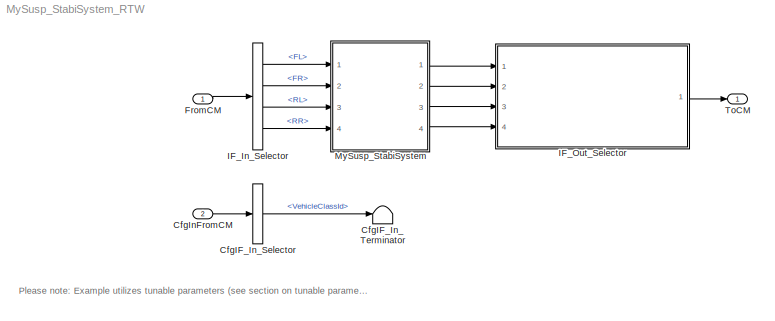
MODEL MySusp_StabiSystem_RTW
KIND model
CONFIG InitFcn = vehicle = 'Car'; if ~length(which('cmself')), cmenv; end\nMySusp_StabiSystem_RTW_bus
CONFIG PreLoadFcn = vehicle = 'Car'; if ~length(which('cmself')), cmenv; end\nMySusp_StabiSystem_RTW_bus\nMySusp_StabiSystem_RTW_params
BLOCK [BusSelector] CfgIF_In_Selector
  OutputSignals = VehicleClassId
  Ports = [1, 1]
  SID = 9
BLOCK [Terminator] CfgIF_In_Terminator
  SID = 10
BLOCK [Inport] CfgInFromCM
  OutDataTypeStr = Bus: cmSusp_StabiSystemCfgIn
  Port = 2
  SID = 8
BLOCK [Inport] FromCM
  OutDataTypeStr = Bus: cmSusp_StabiSystemIn
  SID = 1
BLOCK [BusSelector] IF_In_Selector
  OutputSignals = length.FL,length.FR,length.RL,length.RR
  Ports = [1, 4]
  SID = 2
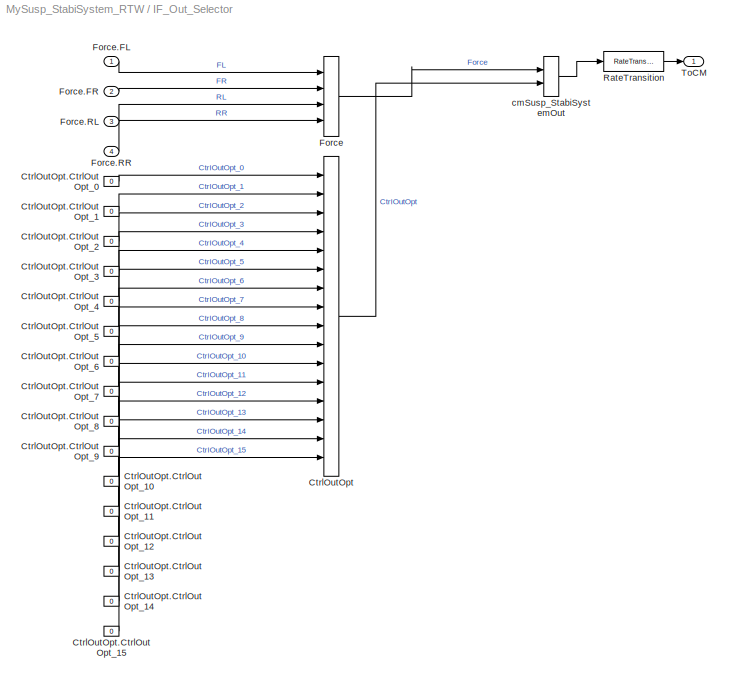
BLOCK [SubSystem] IF_Out_Selector
  OpenFcn = cmSignalSelect('SignalSelection_CB',gcb)
  Ports = [4, 1]
  RequestExecContextInheritance = off
  SID = 5
  UserData = DataTag0
  UserDataPersistent = on
BLOCK [BusCreator] IF_Out_Selector/CtrlOutOpt
  InheritFromInputs = on
  Inputs = 16
  Ports = [16, 1]
  SID = 17
BLOCK [Constant] IF_Out_Selector/CtrlOutOpt.CtrlOutOpt_0
  SID = 18
  Value = 0
BLOCK [Constant] IF_Out_Selector/CtrlOutOpt.CtrlOutOpt_1
  SID = 19
  Value = 0
BLOCK [Constant] IF_Out_Selector/CtrlOutOpt.CtrlOutOpt_10
  SID = 28
  Value = 0
BLOCK [Constant] IF_Out_Selector/CtrlOutOpt.CtrlOutOpt_11
  SID = 29
  Value = 0
BLOCK [Constant] IF_Out_Selector/CtrlOutOpt.CtrlOutOpt_12
  SID = 30
  Value = 0
BLOCK [Constant] IF_Out_Selector/CtrlOutOpt.CtrlOutOpt_13
  SID = 31
  Value = 0
BLOCK [Constant] IF_Out_Selector/CtrlOutOpt.CtrlOutOpt_14
  SID = 32
  Value = 0
BLOCK [Constant] IF_Out_Selector/CtrlOutOpt.CtrlOutOpt_15
  SID = 33
  Value = 0
BLOCK [Constant] IF_Out_Selector/CtrlOutOpt.CtrlOutOpt_2
  SID = 20
  Value = 0
BLOCK [Constant] IF_Out_Selector/CtrlOutOpt.CtrlOutOpt_3
  SID = 21
  Value = 0
BLOCK [Constant] IF_Out_Selector/CtrlOutOpt.CtrlOutOpt_4
  SID = 22
  Value = 0
BLOCK [Constant] IF_Out_Selector/CtrlOutOpt.CtrlOutOpt_5
  SID = 23
  Value = 0
BLOCK [Constant] IF_Out_Selector/CtrlOutOpt.CtrlOutOpt_6
  SID = 24
  Value = 0
BLOCK [Constant] IF_Out_Selector/CtrlOutOpt.CtrlOutOpt_7
  SID = 25
  Value = 0
BLOCK [Constant] IF_Out_Selector/CtrlOutOpt.CtrlOutOpt_8
  SID = 26
  Value = 0
BLOCK [Constant] IF_Out_Selector/CtrlOutOpt.CtrlOutOpt_9
  SID = 27
  Value = 0
BLOCK [BusCreator] IF_Out_Selector/Force
  InheritFromInputs = on
  Inputs = 4
  Ports = [4, 1]
  SID = 12
BLOCK [Inport] IF_Out_Selector/Force.FL
  SID = 49
BLOCK [Inport] IF_Out_Selector/Force.FR
  Port = 2
  SID = 50
BLOCK [Inport] IF_Out_Selector/Force.RL
  Port = 3
  SID = 51
BLOCK [Inport] IF_Out_Selector/Force.RR
  Port = 4
  SID = 52
BLOCK [RateTransition] IF_Out_Selector/RateTransition
  OutPortSampleTime = str2num(get_param(bdroot,'FixedStep'))
  SID = 6
BLOCK [Outport] IF_Out_Selector/ToCM
  SID = 7
BLOCK [BusCreator] IF_Out_Selector/cmSusp_StabiSystemOut
  InheritFromInputs = on
  Inputs = 2
  Ports = [2, 1]
  SID = 11
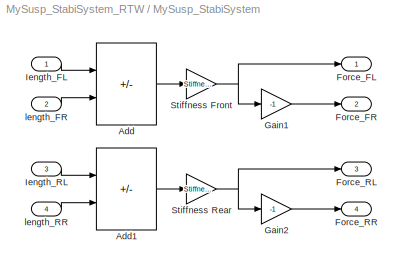
BLOCK [SubSystem] MySusp_StabiSystem
  Ports = [4, 4]
  RequestExecContextInheritance = off
  SID = 34
BLOCK [Sum] MySusp_StabiSystem/Add
  IconShape = rectangular
  Inputs = -+
  Ports = [2, 1]
  SID = 39
BLOCK [Sum] MySusp_StabiSystem/Add1
  IconShape = rectangular
  Inputs = -+
  Ports = [2, 1]
  SID = 40
BLOCK [Outport] MySusp_StabiSystem/Force_FL
  SID = 45
  VectorParamsAs1DForOutWhenUnconnected = off
BLOCK [Outport] MySusp_StabiSystem/Force_FR
  Port = 2
  SID = 46
  VectorParamsAs1DForOutWhenUnconnected = off
BLOCK [Outport] MySusp_StabiSystem/Force_RL
  Port = 3
  SID = 47
  VectorParamsAs1DForOutWhenUnconnected = off
BLOCK [Outport] MySusp_StabiSystem/Force_RR
  Port = 4
  SID = 48
  VectorParamsAs1DForOutWhenUnconnected = off
BLOCK [Gain] MySusp_StabiSystem/Gain1
  Gain = -1
  SID = 41
BLOCK [Gain] MySusp_StabiSystem/Gain2
  Gain = -1
  SID = 42
BLOCK [Inport] MySusp_StabiSystem/Iength_FL
  SID = 35
BLOCK [Inport] MySusp_StabiSystem/Iength_RL
  Port = 3
  SID = 37
BLOCK [Gain] MySusp_StabiSystem/Stiffness Front
  Gain = Stiffness_F
  SID = 43
BLOCK [Gain] MySusp_StabiSystem/Stiffness Rear
  Gain = Stiffness_R
  SID = 44
BLOCK [Inport] MySusp_StabiSystem/length_FR
  Port = 2
  SID = 36
BLOCK [Inport] MySusp_StabiSystem/length_RR
  Port = 4
  SID = 38
BLOCK [Outport] ToCM
  OutDataTypeStr = Bus: cmSusp_StabiSystemOut
  SID = 4
ANNOTATION (root): \n \n Please note: Example utilizes tunable parameters (see section on tunable parameters in the Programmers Guide). \n \n For user models of the class Susp_StabiSystem at least one modelclass-specific parameter (*.TimeInvariant) needs to be specified in the "Modelclass-specific Parameters" dialog of the CarMaker GUI.
LINE CfgIF_In_Selector:1 -> CfgIF_In_Terminator:1
LINE CfgInFromCM:1 -> CfgIF_In_Selector:1
LINE FromCM:1 -> IF_In_Selector:1
LINE IF_In_Selector:1 -> MySusp_StabiSystem:1
LINE IF_In_Selector:2 -> MySusp_StabiSystem:2
LINE IF_In_Selector:3 -> MySusp_StabiSystem:3
LINE IF_In_Selector:4 -> MySusp_StabiSystem:4
LINE IF_Out_Selector/CtrlOutOpt.CtrlOutOpt_0:1 -> IF_Out_Selector/CtrlOutOpt:1
LINE IF_Out_Selector/CtrlOutOpt.CtrlOutOpt_10:1 -> IF_Out_Selector/CtrlOutOpt:11
LINE IF_Out_Selector/CtrlOutOpt.CtrlOutOpt_11:1 -> IF_Out_Selector/CtrlOutOpt:12
LINE IF_Out_Selector/CtrlOutOpt.CtrlOutOpt_12:1 -> IF_Out_Selector/CtrlOutOpt:13
LINE IF_Out_Selector/CtrlOutOpt.CtrlOutOpt_13:1 -> IF_Out_Selector/CtrlOutOpt:14
LINE IF_Out_Selector/CtrlOutOpt.CtrlOutOpt_14:1 -> IF_Out_Selector/CtrlOutOpt:15
LINE IF_Out_Selector/CtrlOutOpt.CtrlOutOpt_15:1 -> IF_Out_Selector/CtrlOutOpt:16
LINE IF_Out_Selector/CtrlOutOpt.CtrlOutOpt_1:1 -> IF_Out_Selector/CtrlOutOpt:2
LINE IF_Out_Selector/CtrlOutOpt.CtrlOutOpt_2:1 -> IF_Out_Selector/CtrlOutOpt:3
LINE IF_Out_Selector/CtrlOutOpt.CtrlOutOpt_3:1 -> IF_Out_Selector/CtrlOutOpt:4
LINE IF_Out_Selector/CtrlOutOpt.CtrlOutOpt_4:1 -> IF_Out_Selector/CtrlOutOpt:5
LINE IF_Out_Selector/CtrlOutOpt.CtrlOutOpt_5:1 -> IF_Out_Selector/CtrlOutOpt:6
LINE IF_Out_Selector/CtrlOutOpt.CtrlOutOpt_6:1 -> IF_Out_Selector/CtrlOutOpt:7
LINE IF_Out_Selector/CtrlOutOpt.CtrlOutOpt_7:1 -> IF_Out_Selector/CtrlOutOpt:8
LINE IF_Out_Selector/CtrlOutOpt.CtrlOutOpt_8:1 -> IF_Out_Selector/CtrlOutOpt:9
LINE IF_Out_Selector/CtrlOutOpt.CtrlOutOpt_9:1 -> IF_Out_Selector/CtrlOutOpt:10
LINE IF_Out_Selector/CtrlOutOpt:1 -> IF_Out_Selector/cmSusp_StabiSystemOut:2
LINE IF_Out_Selector/Force.FL:1 -> IF_Out_Selector/Force:1
LINE IF_Out_Selector/Force.FR:1 -> IF_Out_Selector/Force:2
LINE IF_Out_Selector/Force.RL:1 -> IF_Out_Selector/Force:3
LINE IF_Out_Selector/Force.RR:1 -> IF_Out_Selector/Force:4
LINE IF_Out_Selector/Force:1 -> IF_Out_Selector/cmSusp_StabiSystemOut:1
LINE IF_Out_Selector/RateTransition:1 -> IF_Out_Selector/ToCM:1
LINE IF_Out_Selector/cmSusp_StabiSystemOut:1 -> IF_Out_Selector/RateTransition:1
LINE IF_Out_Selector:1 -> ToCM:1
LINE MySusp_StabiSystem/Add1:1 -> MySusp_StabiSystem/Stiffness Rear:1
LINE MySusp_StabiSystem/Add:1 -> MySusp_StabiSystem/Stiffness Front:1
LINE MySusp_StabiSystem/Gain1:1 -> MySusp_StabiSystem/Force_FR:1
LINE MySusp_StabiSystem/Gain2:1 -> MySusp_StabiSystem/Force_RR:1
LINE MySusp_StabiSystem/Iength_FL:1 -> MySusp_StabiSystem/Add:1
LINE MySusp_StabiSystem/Iength_RL:1 -> MySusp_StabiSystem/Add1:1
NET MySusp_StabiSystem/Stiffness Front:1 -> MySusp_StabiSystem/Force_FL:1, MySusp_StabiSystem/Gain1:1
NET MySusp_StabiSystem/Stiffness Rear:1 -> MySusp_StabiSystem/Force_RL:1, MySusp_StabiSystem/Gain2:1
LINE MySusp_StabiSystem/length_FR:1 -> MySusp_StabiSystem/Add:2
LINE MySusp_StabiSystem/length_RR:1 -> MySusp_StabiSystem/Add1:2
LINE MySusp_StabiSystem:1 -> IF_Out_Selector:1
LINE MySusp_StabiSystem:2 -> IF_Out_Selector:2
LINE MySusp_StabiSystem:3 -> IF_Out_Selector:3
LINE MySusp_StabiSystem:4 -> IF_Out_Selector:4
note: NET lines group one-source signal fan-out (src -> all destinations, sorted); 1:1 wires keep LINE
